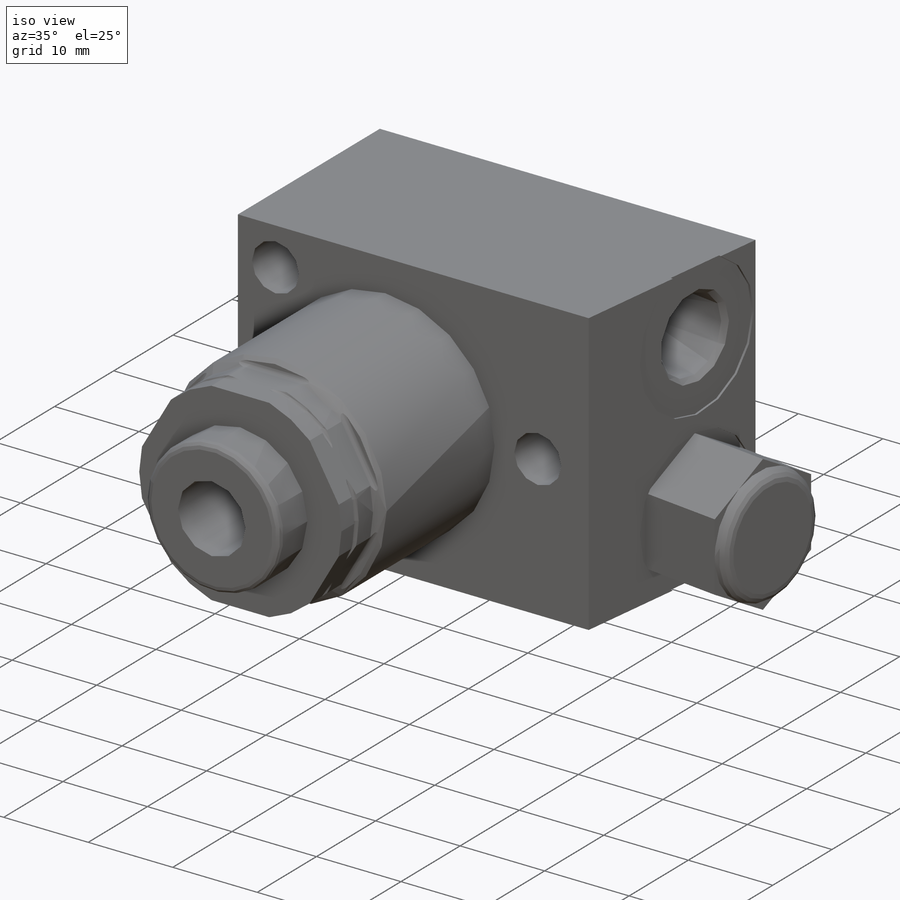
[diagram: iso view]
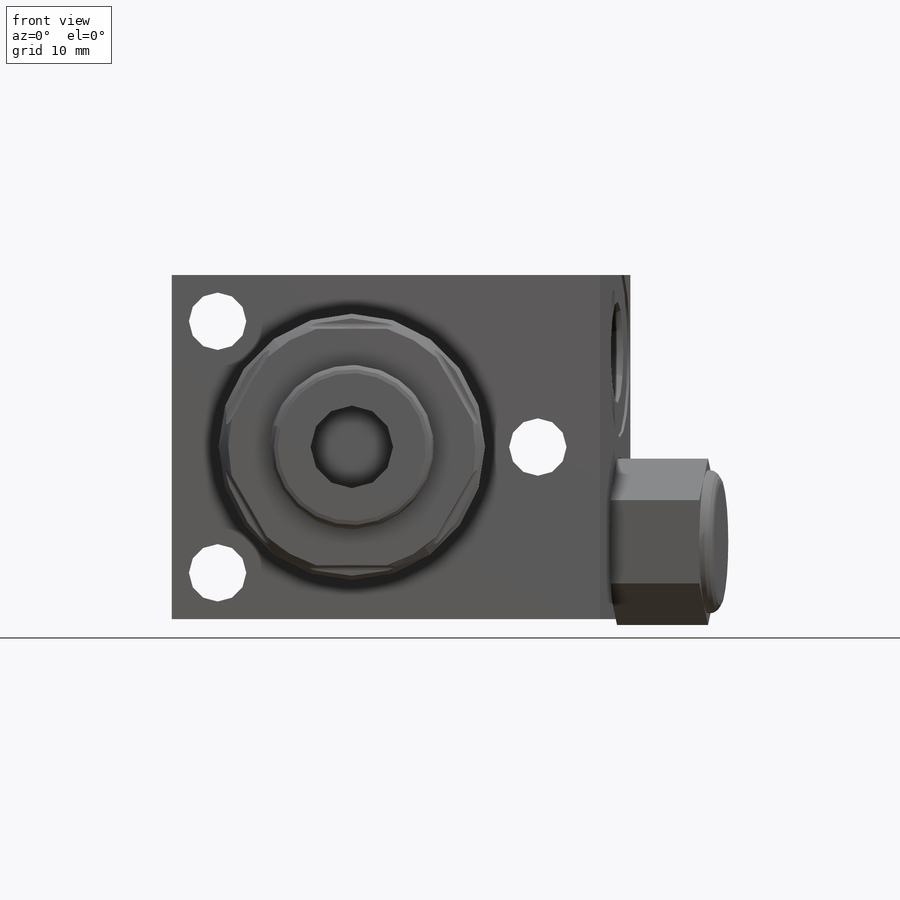
[diagram: front view]
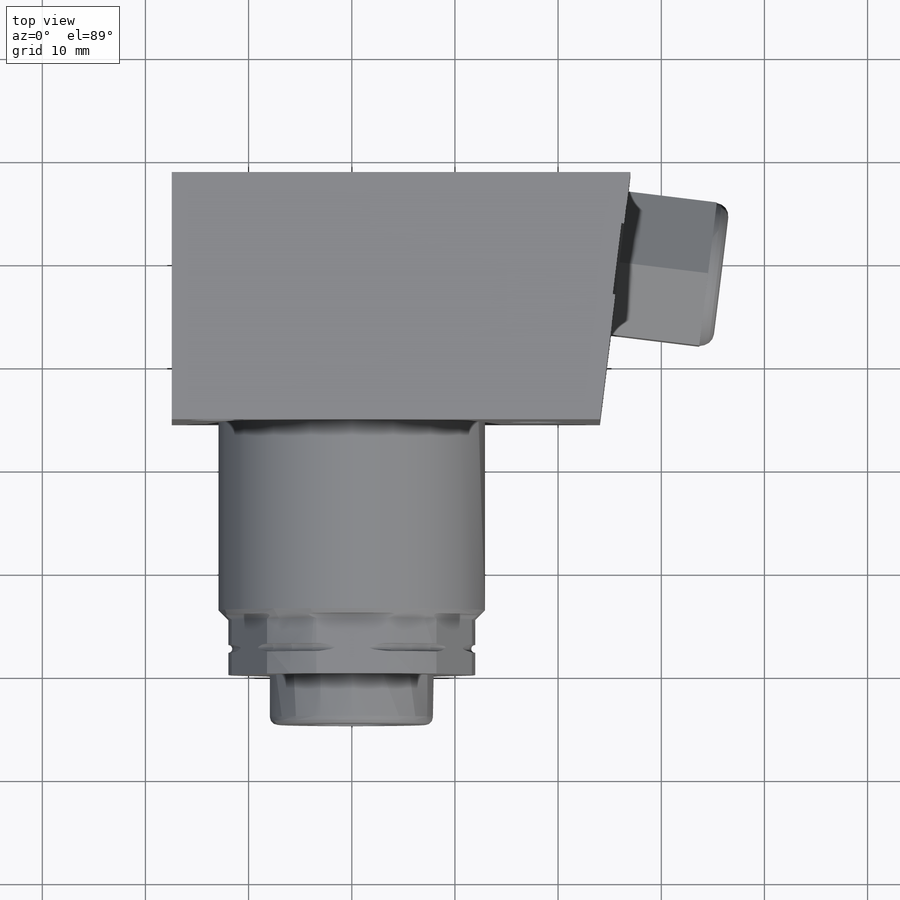
[diagram: top view]
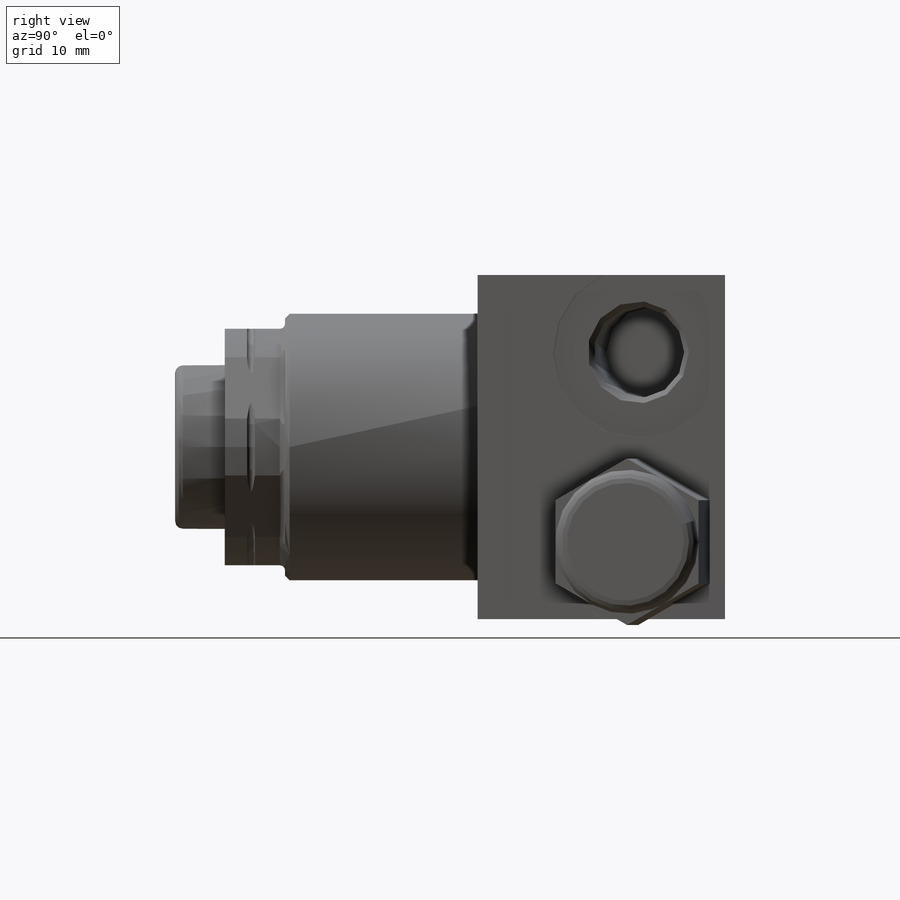
[diagram: right view]
SOLIDWORKS PART (.sldprt)
format: sldprt  version: not decoded by parser v0  size: 452,096 bytes
history: native  units: mm
features: sketch x11, cut_revolve x3, revolve x2, cut_extrude x2, extrude x2, material x1, pattern_circular x1, hole x1, plane x1, pattern_linear x1 (+11 scaffold rows collapsed)
feature tree (36):
  scaffold x11  (default folders/planes/origin — collapsed)
  material  "Alloy Steel"
  sketch  "Sketch1"  dims[c1.D1=21.8694mm c1.D2=2.5908mm c1.D3=0.8128mm c1.D4=24.0792mm c1.D5=24.0792mm c1.D6=7.239mm c1.D7=25.8318mm c1.D8=~16.415711mm c2.D8=45.0deg c2.D9=40.005mm c2.D10=23.9268mm c2.D11=~8.100487mm c3.D11=45.0deg c3.D12=5.334mm]
  revolve  "Revolve1"  Angle=360deg
  sketch  "Sketch2"  dims[D4=0.508mm D1=22.9235mm D2=5.842mm D3=3.175mm]
  cut_extrude  "Cut-Extrude1"  [1 undecoded]
  pattern_circular  "CirPattern1"  Count=6 Angle=360deg
  sketch  "Sketch6"  dims[c1.D1=24.511mm c1.D2=~29.301471mm c2.D2=83.0deg c2.D3=23.9776mm c2.D4=44.45mm c2.D5=17.4498mm]
  extrude  "Extrude1"  Depth=33.3502mm
  sketch  "Sketch3"  dims[c1.D1=0.762mm c1.D2=15.875mm c1.D3=57.0484mm c1.D4=1.524mm c1.D5=17.4752mm c2.D3=53.3146mm]
  revolve  "Revolve2"  Angle=360deg
  sketch  "Sketch4"  dims[D1=8.001mm]
  cut_extrude  "Cut-Extrude2"  Depth=10.541mm
  sketch  "Sketch5"  dims[D3=0.762mm D1=2.54mm D2=11.9634mm D4=3.175mm]
  cut_revolve  "Cut-Revolve1"  Angle=360deg
  hole  "Hole1"  Diameter=5.563mm Depth=23.9776mm
  sketch  "Sketch8"  dims[D1=12.192mm D2=13.0048mm D3=18.034mm]
  sketch  "Sketch7"  dims[Diameter=5.563mm Depth=23.9776mm]
  plane  "Plane1"  Offset=9.1821mm
  sketch  "Sketch9"  dims[c1.D1=8.509mm c1.D2=16.51mm c1.D3=0.254mm c1.D4=8.8392mm c1.D5=10.5664mm c1.D6=~1.396103mm c2.D6=45.0deg c2.D7=9.906mm]
  cut_revolve  "Cut-Revolve2"  Angle=360deg
  pattern_linear  "LPattern1"  Count1=2 Count2=1 Spacing1=18.3642mm Spacing2=2.54mm
  sketch  "Sketch10"  dims[D1=13.97mm]
  extrude  "Extrude2"  Depth=10.16mm
  sketch  "Sketch11"  dims[D1=1.27mm D2=6.35mm D3=3.175mm]
  cut_revolve  "Cut-Revolve3"  Angle=360deg
decode coverage: 22 of 23 modeling features carry decoded parameters
note: ~ marks probable driven/reference dimensions
note: 1 parameter value undecoded
note: suppression state not decoded; provenance and decode notes live in map.json
